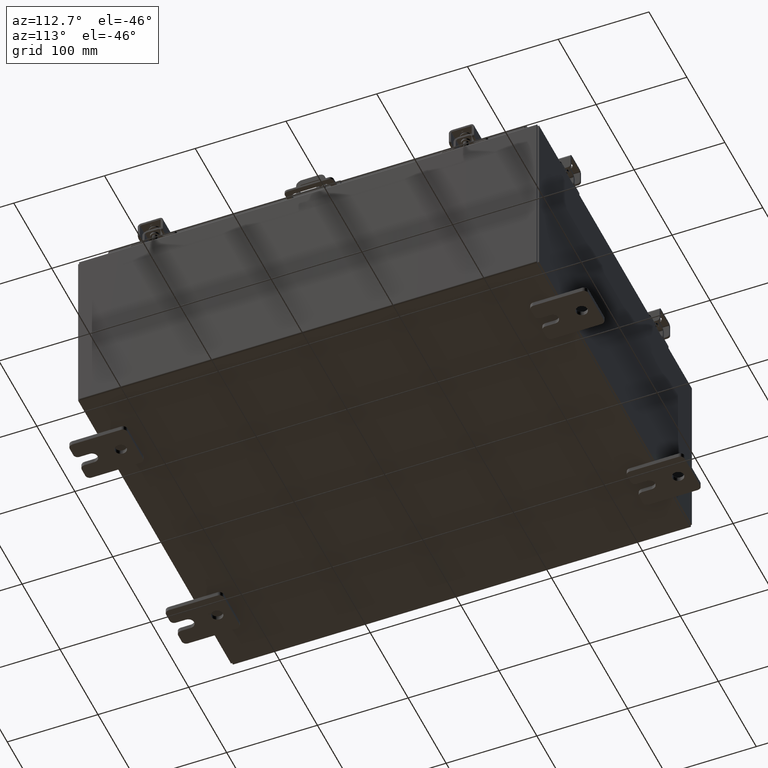
[diagram: clean part render]
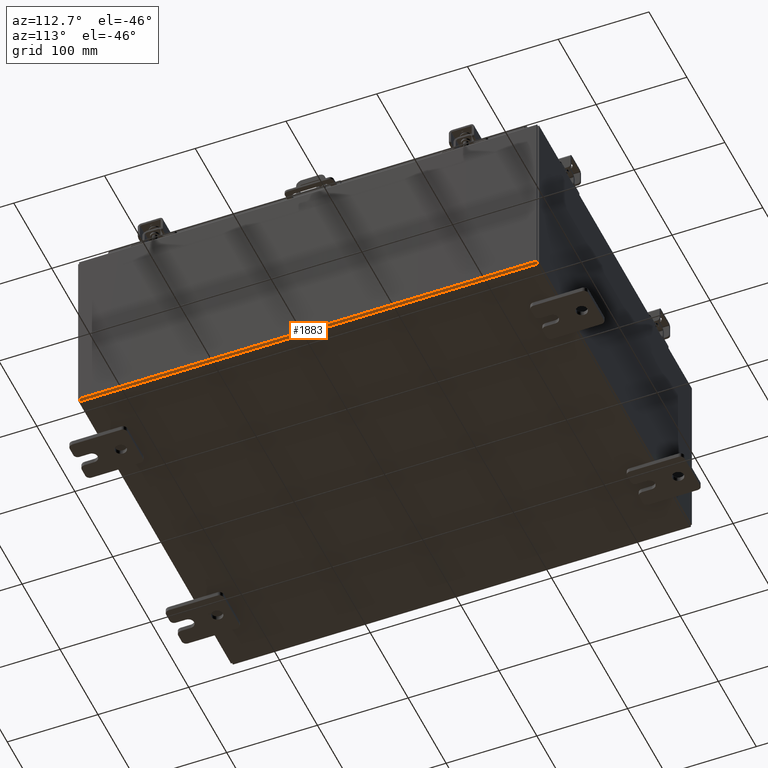
[diagram: same view with one face highlighted and labeled with its STEP entity id]
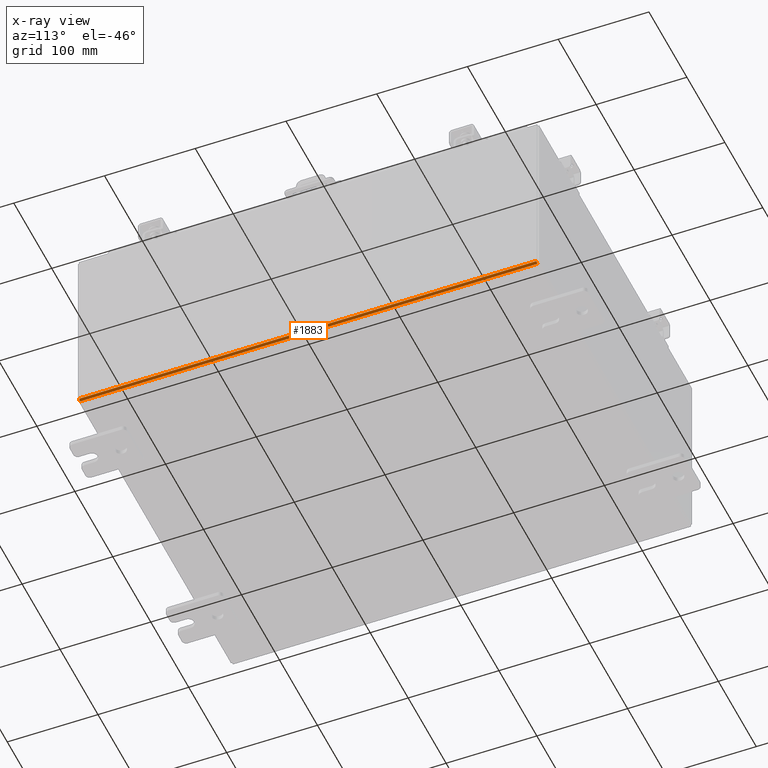
[diagram: x-ray of the same camera — body ghosted, the highlighted face saturated]
A machine part, auxiliary view. The second image highlights one B-rep face of the part: STEP entity #1883.
The next image is the same camera in x-ray: the body ghosted, the highlighted face saturated — about 0% of this face is hidden behind the body in this view.
In plain terms, the highlighted cylindrical surface (edge-blend (fillet) strip) has radius 2.2276 mm, axis along (0, 1, 0).
Its self-contained STEP definition (entity closure, byte-faithful):
#1 = VECTOR ( 'NONE', #10430, 39.37007874015748100 ) ;
#45 = CIRCLE ( 'NONE', #27671, 0.08770000000000009700 ) ;
#142 = DIRECTION ( 'NONE',  ( 0.0000000000000000000, 1.000000000000000000, 0.0000000000000000000 ) ) ;
#904 = ORIENTED_EDGE ( 'NONE', *, *, #10460, .F. ) ;
#1415 = CARTESIAN_POINT ( 'NONE',  ( 7.912300000000001900, 9.925299999999998200, -0.07469999999999994700 ) ) ;
#1630 = VECTOR ( 'NONE', #24411, 39.37007874015748100 ) ;
#1883 = ADVANCED_FACE ( 'NONE', ( #6021 ), #22740, .T. ) ;
#5290 = VERTEX_POINT ( 'NONE', #17343 ) ;
#6021 = FACE_OUTER_BOUND ( 'NONE', #23095, .T. ) ;
#6519 = CARTESIAN_POINT ( 'NONE',  ( 7.912300000000001900, 9.925299999999996500, 0.01300000000000015200 ) ) ;
#8229 = VERTEX_POINT ( 'NONE', #12395 ) ;
#8472 = VERTEX_POINT ( 'NONE', #22642 ) ;
#8617 = DIRECTION ( 'NONE',  ( -0.0000000000000000000, -1.000000000000000000, -0.0000000000000000000 ) ) ;
#8755 = DIRECTION ( 'NONE',  ( 0.0000000000000000000, 0.0000000000000000000, 1.000000000000000000 ) ) ;
#10430 = DIRECTION ( 'NONE',  ( -0.0000000000000000000, -1.000000000000000000, -0.0000000000000000000 ) ) ;
#10460 = EDGE_CURVE ( 'NONE', #5290, #11016, #45, .T. ) ;
#10654 = ORIENTED_EDGE ( 'NONE', *, *, #27200, .F. ) ;
#11016 = VERTEX_POINT ( 'NONE', #22087 ) ;
#12395 = CARTESIAN_POINT ( 'NONE',  ( 8.000000000000001800, -9.925300000000001800, 0.01299999999999984800 ) ) ;
#13064 = CARTESIAN_POINT ( 'NONE',  ( 8.000000000000001800, -9.925300000000001800, 0.01299999999999984700 ) ) ;
#14386 = DIRECTION ( 'NONE',  ( 1.000000000000000000, 0.0000000000000000000, -3.455694262224952200E-015 ) ) ;
#15671 = AXIS2_PLACEMENT_3D ( 'NONE', #22242, #8617, #24552 ) ;
#17343 = CARTESIAN_POINT ( 'NONE',  ( 8.000000000000001800, 9.925299999999996500, 0.01299999999999984700 ) ) ;
#18538 = EDGE_CURVE ( 'NONE', #5290, #8229, #20488, .T. ) ;
#19580 = CIRCLE ( 'NONE', #15671, 0.08770000000000009700 ) ;
#20488 = LINE ( 'NONE', #13064, #1630 ) ;
#22087 = CARTESIAN_POINT ( 'NONE',  ( 7.912300000000001900, 9.925299999999996500, -0.07469999999999994700 ) ) ;
#22242 = CARTESIAN_POINT ( 'NONE',  ( 7.912300000000001900, -9.925300000000001800, 0.01300000000000015200 ) ) ;
#22432 = DIRECTION ( 'NONE',  ( 0.0000000000000000000, 1.000000000000000000, 0.0000000000000000000 ) ) ;
#22524 = AXIS2_PLACEMENT_3D ( 'NONE', #25175, #142, #14386 ) ;
#22642 = CARTESIAN_POINT ( 'NONE',  ( 7.912300000000001900, -9.925300000000001800, -0.07470000000000000300 ) ) ;
#22740 = CYLINDRICAL_SURFACE ( 'NONE', #22524, 0.08770000000000026400 ) ;
#23095 = EDGE_LOOP ( 'NONE', ( #10654, #904, #25989, #26019 ) ) ;
#24192 = LINE ( 'NONE', #1415, #1 ) ;
#24411 = DIRECTION ( 'NONE',  ( -0.0000000000000000000, -1.000000000000000000, -0.0000000000000000000 ) ) ;
#24552 = DIRECTION ( 'NONE',  ( 0.0000000000000000000, 0.0000000000000000000, 1.000000000000000000 ) ) ;
#25175 = CARTESIAN_POINT ( 'NONE',  ( 7.912300000000001900, 9.925299999999998200, 0.01300000000000015200 ) ) ;
#25853 = EDGE_CURVE ( 'NONE', #8472, #8229, #19580, .T. ) ;
#25989 = ORIENTED_EDGE ( 'NONE', *, *, #18538, .T. ) ;
#26019 = ORIENTED_EDGE ( 'NONE', *, *, #25853, .F. ) ;
#27200 = EDGE_CURVE ( 'NONE', #11016, #8472, #24192, .T. ) ;
#27671 = AXIS2_PLACEMENT_3D ( 'NONE', #6519, #22432, #8755 ) ;